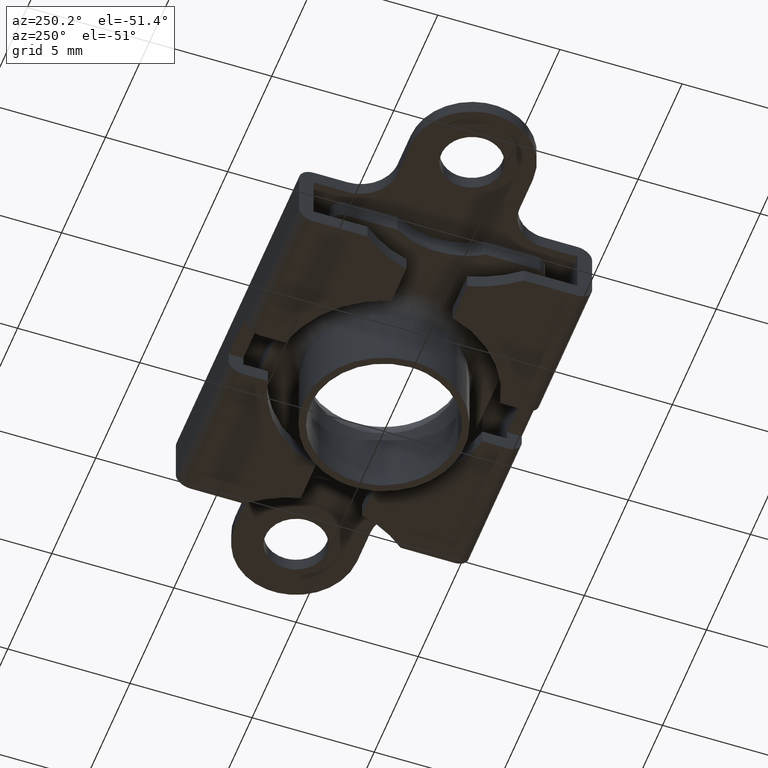
[diagram: clean part render]
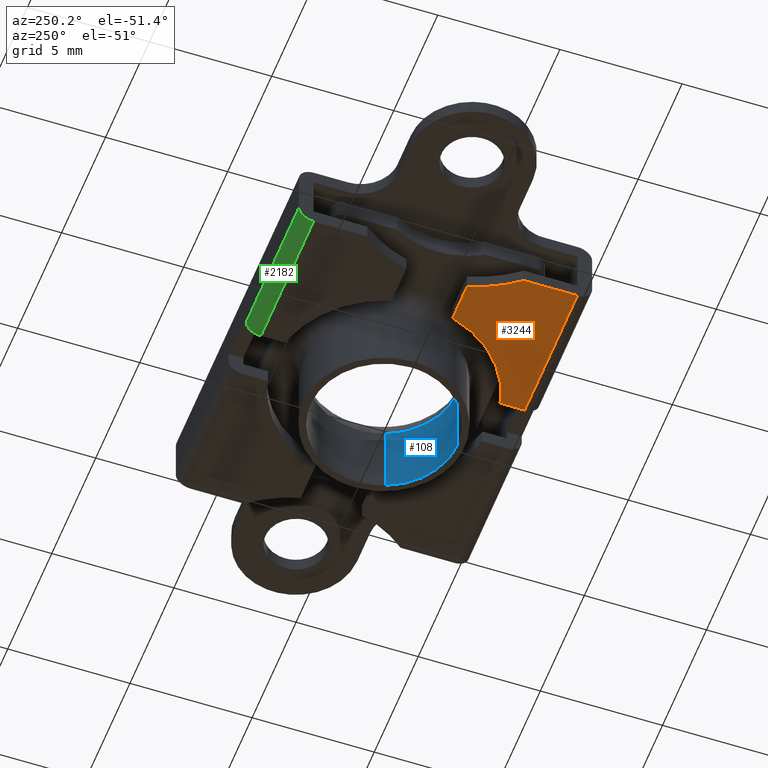
[diagram: same view with three faces highlighted in distinct colors, each labeled with its STEP entity id]
A machine part, auxiliary view with three faces highlighted in distinct colors.
Their STEP definitions:

[orange] entity #3244 — the highlighted face is a freeform B-spline surface patch.
#2014=CARTESIAN_POINT('',(-7.0,-5.400000000000000,-3.0));
#2015=VERTEX_POINT('',#2014);
#2031=CARTESIAN_POINT('',(-1.0,-5.400000000000000,-3.0));
#2032=VERTEX_POINT('',#2031);
#2033=CARTESIAN_POINT('',(-1.0,-5.400000000000000,-3.0));
#2034=CARTESIAN_POINT('',(-7.0,-5.400000000000000,-3.0));
#2035=QUASI_UNIFORM_CURVE('',1,(#2033,#2034),.UNSPECIFIED.,.F.,.U.);
#2036=EDGE_CURVE('',#2032,#2015,#2035,.T.);
#2680=CARTESIAN_POINT('',(-6.000070817240729,-1.250000000000000,-3.0));
#2681=VERTEX_POINT('',#2680);
#2687=CARTESIAN_POINT('',(-7.0,-3.200689661619805,-3.0));
#2688=VERTEX_POINT('',#2687);
#2689=CARTESIAN_POINT('',(-6.999999999999992,-3.200689661619811,-3.0));
#2690=CARTESIAN_POINT('',(-6.280906277243163,-2.337671059613929,-3.0));
#2691=CARTESIAN_POINT('',(-6.000070817240728,-1.250000000000002,-3.0));
#2699=(BOUNDED_CURVE()B_SPLINE_CURVE(2,(#2689,#2690,#2691),.UNSPECIFIED.,.F.,.U.)CURVE()GEOMETRIC_REPRESENTATION_ITEM()QUASI_UNIFORM_CURVE()RATIONAL_B_SPLINE_CURVE((1.0,0.975679001893123,1.0))REPRESENTATION_ITEM(''));
#2700=EDGE_CURVE('',#2688,#2681,#2699,.T.);
#2722=CARTESIAN_POINT('',(-4.322904557430135,-1.249998474938974,-3.0));
#2723=VERTEX_POINT('',#2722);
#2729=CARTESIAN_POINT('',(-4.322904557430135,-1.249998474938974,-3.0));
#2730=CARTESIAN_POINT('',(-6.000070817240729,-1.250000000000000,-3.0));
#2731=QUASI_UNIFORM_CURVE('',1,(#2729,#2730),.UNSPECIFIED.,.F.,.U.);
#2732=EDGE_CURVE('',#2723,#2681,#2731,.T.);
#2767=CARTESIAN_POINT('',(-0.999999999999979,-4.387482193696065,-3.0));
#2768=VERTEX_POINT('',#2767);
#2774=CARTESIAN_POINT('',(-4.322904557430136,-1.249998474938973,-3.0));
#2775=CARTESIAN_POINT('',(-3.586116996939726,-3.798051426169435,-3.0));
#2776=CARTESIAN_POINT('',(-0.999999999999981,-4.387482193696065,-3.0));
#2784=(BOUNDED_CURVE()B_SPLINE_CURVE(2,(#2774,#2775,#2776),.UNSPECIFIED.,.F.,.U.)CURVE()GEOMETRIC_REPRESENTATION_ITEM()QUASI_UNIFORM_CURVE()RATIONAL_B_SPLINE_CURVE((1.0,0.861483799040461,1.0))REPRESENTATION_ITEM(''));
#2785=EDGE_CURVE('',#2723,#2768,#2784,.T.);
#3211=CARTESIAN_POINT('',(-0.999999999999979,-4.387482193696065,-3.0));
#3212=CARTESIAN_POINT('',(-1.0,-5.400000000000000,-3.0));
#3213=QUASI_UNIFORM_CURVE('',1,(#3211,#3212),.UNSPECIFIED.,.F.,.U.);
#3214=EDGE_CURVE('',#2768,#2032,#3213,.T.);
#3227=CARTESIAN_POINT('',(-0.700300011629143,-5.607292685005025,-3.0));
#3228=CARTESIAN_POINT('',(-7.299700149303379,-5.607292685005025,-3.0));
#3229=CARTESIAN_POINT('',(-0.700300011629143,-1.042705789933949,-3.0));
#3230=CARTESIAN_POINT('',(-7.299700149303379,-1.042705789933949,-3.0));
#3231=B_SPLINE_SURFACE_WITH_KNOTS('',1,1,((#3227,#3229),(#3228,#3230)),.UNSPECIFIED.,.F.,.F.,.U.,(2,2),(2,2),(0.0,6.599400137674236),(0.0,4.564586895071076),.UNSPECIFIED.);
#3232=ORIENTED_EDGE('',*,*,#3214,.T.);
#3233=ORIENTED_EDGE('',*,*,#2036,.T.);
#3234=CARTESIAN_POINT('',(-7.0,-3.200689661619805,-3.0));
#3235=CARTESIAN_POINT('',(-7.0,-5.400000000000000,-3.0));
#3236=QUASI_UNIFORM_CURVE('',1,(#3234,#3235),.UNSPECIFIED.,.F.,.U.);
#3237=EDGE_CURVE('',#2688,#2015,#3236,.T.);
#3238=ORIENTED_EDGE('',*,*,#3237,.F.);
#3239=ORIENTED_EDGE('',*,*,#2700,.T.);
#3240=ORIENTED_EDGE('',*,*,#2732,.F.);
#3241=ORIENTED_EDGE('',*,*,#2785,.T.);
#3242=EDGE_LOOP('',(#3232,#3233,#3238,#3239,#3240,#3241));
#3243=FACE_OUTER_BOUND('',#3242,.T.);
#3244=ADVANCED_FACE('',(#3243),#3231,.T.);

[blue] entity #108 — the highlighted face is a freeform B-spline surface patch.
#44=CARTESIAN_POINT('',(2.797171841738264,-1.084356808336890,-1.719999999914793));
#45=CARTESIAN_POINT('',(2.047578665744386,-3.017983183464341,-1.719999999914793));
#46=CARTESIAN_POINT('',(-0.026179606495123,-2.999885769192513,-1.719999999914792));
#47=CARTESIAN_POINT('',(2.797171841738264,-1.084356808336890,-5.082000000002130));
#48=CARTESIAN_POINT('',(2.047578665744386,-3.017983183464341,-5.082000000002131));
#49=CARTESIAN_POINT('',(-0.026179606495123,-2.999885769192513,-5.082000000002131));
#57=(BOUNDED_SURFACE()B_SPLINE_SURFACE(2,1,((#44,#47),(#45,#48),(#46,#49)),.UNSPECIFIED.,.F.,.F.,.U.)B_SPLINE_SURFACE_WITH_KNOTS((3,3),(2,2),(0.0,3.740660248790822),(0.0,3.362000000087339),.UNSPECIFIED.)GEOMETRIC_REPRESENTATION_ITEM()RATIONAL_B_SPLINE_SURFACE(((0.893152553776853,0.893152553776853),(0.777401153701776,0.777401153701776),(1.0,1.0)))REPRESENTATION_ITEM('')SURFACE());
#58=CARTESIAN_POINT('',(-0.026179606510455,-2.999885769192380,-1.800000000000022));
#59=VERTEX_POINT('',#58);
#60=CARTESIAN_POINT('',(2.797171841735749,-1.084356808343377,-1.800000000000025));
#61=VERTEX_POINT('',#60);
#62=CARTESIAN_POINT('',(-0.026179606510455,-2.999885769192380,-1.800000000000022));
#63=CARTESIAN_POINT('',(-0.013090052477438,-3.0,-1.800000000000025));
#64=CARTESIAN_POINT('',(0.0,-3.0,-1.800000000000025));
#65=CARTESIAN_POINT('',(2.054550059888129,-3.000000000000001,-1.800000000000026));
#66=CARTESIAN_POINT('',(2.797171841735749,-1.084356808343377,-1.800000000000025));
#74=(BOUNDED_CURVE()B_SPLINE_CURVE(2,(#62,#63,#64,#65,#66),.UNSPECIFIED.,.F.,.U.)B_SPLINE_CURVE_WITH_KNOTS((3,2,3),(0.248460105663212,0.250000000000000,0.438623447391955),.UNSPECIFIED.)CURVE()GEOMETRIC_REPRESENTATION_ITEM()RATIONAL_B_SPLINE_CURVE((0.996414028096239,0.998195901564263,1.0,0.779013885398721,0.891493072892218))REPRESENTATION_ITEM(''));
#75=EDGE_CURVE('',#59,#61,#74,.T.);
#76=ORIENTED_EDGE('',*,*,#75,.T.);
#77=CARTESIAN_POINT('',(2.797171841736055,-1.084356808342589,-4.999999999999999));
#78=VERTEX_POINT('',#77);
#79=CARTESIAN_POINT('',(2.797171841735749,-1.084356808343377,-1.800000000000025));
#80=CARTESIAN_POINT('',(2.797171841736055,-1.084356808342589,-4.999999999999999));
#81=QUASI_UNIFORM_CURVE('',1,(#79,#80),.UNSPECIFIED.,.F.,.U.);
#82=EDGE_CURVE('',#61,#78,#81,.T.);
#83=ORIENTED_EDGE('',*,*,#82,.T.);
#84=CARTESIAN_POINT('',(-0.026179606513846,-2.999885769192350,-5.0));
#85=VERTEX_POINT('',#84);
#86=CARTESIAN_POINT('',(2.797171841736055,-1.084356808342589,-4.999999999999999));
#87=CARTESIAN_POINT('',(2.054550059889370,-3.000000000000000,-5.0));
#88=CARTESIAN_POINT('',(0.0,-3.0,-5.0));
#89=CARTESIAN_POINT('',(-0.013090052480829,-3.000000000000000,-5.0));
#90=CARTESIAN_POINT('',(-0.026179606513846,-2.999885769192350,-5.000000000000001));
#98=(BOUNDED_CURVE()B_SPLINE_CURVE(2,(#86,#87,#88,#89,#90),.UNSPECIFIED.,.F.,.U.)B_SPLINE_CURVE_WITH_KNOTS((3,2,3),(0.061376552607956,0.250000000000000,0.251539894337186),.UNSPECIFIED.)CURVE()GEOMETRIC_REPRESENTATION_ITEM()RATIONAL_B_SPLINE_CURVE((0.891493072892324,0.779013885398617,1.0,0.998195901563796,0.996414028095317))REPRESENTATION_ITEM(''));
#99=EDGE_CURVE('',#78,#85,#98,.T.);
#100=ORIENTED_EDGE('',*,*,#99,.T.);
#101=CARTESIAN_POINT('',(-0.026179606510455,-2.999885769192380,-1.800000000000022));
#102=CARTESIAN_POINT('',(-0.026179606513846,-2.999885769192350,-5.0));
#103=QUASI_UNIFORM_CURVE('',1,(#101,#102),.UNSPECIFIED.,.F.,.U.);
#104=EDGE_CURVE('',#59,#85,#103,.T.);
#105=ORIENTED_EDGE('',*,*,#104,.F.);
#106=EDGE_LOOP('',(#76,#83,#100,#105));
#107=FACE_OUTER_BOUND('',#106,.T.);
#108=ADVANCED_FACE('',(#107),#57,.F.);

[green] entity #2182 — the highlighted face is a freeform B-spline surface patch.
#2122=CARTESIAN_POINT('',(-0.850000000000000,5.384293831015277,-2.999794394985334));
#2123=CARTESIAN_POINT('',(-7.153750000000001,5.384293831015277,-2.999794394985334));
#2124=CARTESIAN_POINT('',(-0.850000000000000,6.044990813208186,-3.017095354342034));
#2125=CARTESIAN_POINT('',(-7.153750000000001,6.044990813208186,-3.017095354342034));
#2126=CARTESIAN_POINT('',(-0.850000000000000,5.998514691895090,-2.357808015148289));
#2127=CARTESIAN_POINT('',(-7.153750000000002,5.998514691895090,-2.357808015148289));
#2135=(BOUNDED_SURFACE()B_SPLINE_SURFACE(1,2,((#2122,#2124,#2126),(#2123,#2125,#2127)),.UNSPECIFIED.,.F.,.F.,.U.)B_SPLINE_SURFACE_WITH_KNOTS((2,2),(3,3),(0.0,6.303750000000002),(0.0,0.994518564542104),.UNSPECIFIED.)GEOMETRIC_REPRESENTATION_ITEM()RATIONAL_B_SPLINE_SURFACE(((1.0,0.670944245585095,0.996392604240251),(1.0,0.670944245585095,0.996392604240251)))REPRESENTATION_ITEM('')SURFACE());
#2136=CARTESIAN_POINT('',(-7.0,6.0,-2.400000000000000));
#2137=VERTEX_POINT('',#2136);
#2138=CARTESIAN_POINT('',(-7.0,5.400000000000000,-3.0));
#2139=VERTEX_POINT('',#2138);
#2140=CARTESIAN_POINT('',(-7.0,6.0,-2.400000000000000));
#2141=CARTESIAN_POINT('',(-6.999999999999999,6.0,-3.000000000000000));
#2142=CARTESIAN_POINT('',(-7.0,5.400000000000000,-3.0));
#2150=(BOUNDED_CURVE()B_SPLINE_CURVE(2,(#2140,#2141,#2142),.UNSPECIFIED.,.F.,.U.)CURVE()GEOMETRIC_REPRESENTATION_ITEM()QUASI_UNIFORM_CURVE()RATIONAL_B_SPLINE_CURVE((1.0,0.707106781186547,1.0))REPRESENTATION_ITEM(''));
#2151=EDGE_CURVE('',#2137,#2139,#2150,.T.);
#2152=ORIENTED_EDGE('',*,*,#2151,.F.);
#2153=CARTESIAN_POINT('',(-1.0,6.0,-2.400000000000000));
#2154=VERTEX_POINT('',#2153);
#2155=CARTESIAN_POINT('',(-1.0,6.0,-2.400000000000000));
#2156=CARTESIAN_POINT('',(-7.0,6.0,-2.400000000000000));
#2157=QUASI_UNIFORM_CURVE('',1,(#2155,#2156),.UNSPECIFIED.,.F.,.U.);
#2158=EDGE_CURVE('',#2154,#2137,#2157,.T.);
#2159=ORIENTED_EDGE('',*,*,#2158,.F.);
#2160=CARTESIAN_POINT('',(-1.0,5.400000000000000,-3.0));
#2161=VERTEX_POINT('',#2160);
#2162=CARTESIAN_POINT('',(-1.0,5.400000000000000,-3.0));
#2163=CARTESIAN_POINT('',(-1.0,6.0,-3.000000000000000));
#2164=CARTESIAN_POINT('',(-1.0,6.0,-2.400000000000000));
#2172=(BOUNDED_CURVE()B_SPLINE_CURVE(2,(#2162,#2163,#2164),.UNSPECIFIED.,.F.,.U.)CURVE()GEOMETRIC_REPRESENTATION_ITEM()QUASI_UNIFORM_CURVE()RATIONAL_B_SPLINE_CURVE((1.0,0.707106781186547,1.0))REPRESENTATION_ITEM(''));
#2173=EDGE_CURVE('',#2161,#2154,#2172,.T.);
#2174=ORIENTED_EDGE('',*,*,#2173,.F.);
#2175=CARTESIAN_POINT('',(-7.0,5.400000000000000,-3.0));
#2176=CARTESIAN_POINT('',(-1.0,5.400000000000000,-3.0));
#2177=QUASI_UNIFORM_CURVE('',1,(#2175,#2176),.UNSPECIFIED.,.F.,.U.);
#2178=EDGE_CURVE('',#2139,#2161,#2177,.T.);
#2179=ORIENTED_EDGE('',*,*,#2178,.F.);
#2180=EDGE_LOOP('',(#2152,#2159,#2174,#2179));
#2181=FACE_OUTER_BOUND('',#2180,.T.);
#2182=ADVANCED_FACE('',(#2181),#2135,.T.);